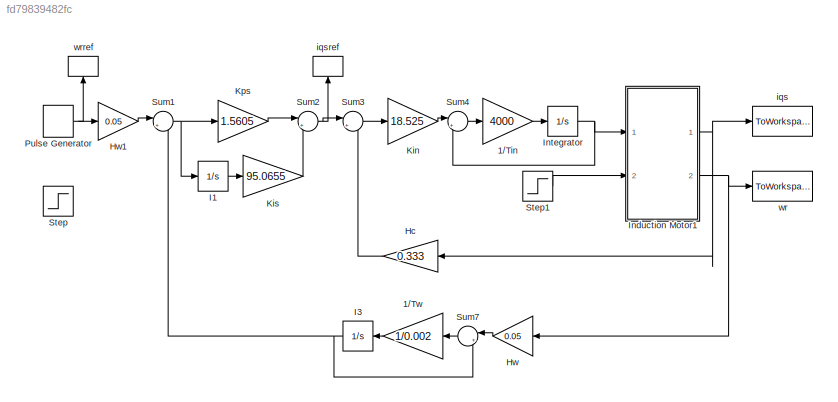
MODEL slx_fd79839482fc
KIND model
BLOCK [Gain] 1//Tin
  Gain = 4000
  OutDataTypeStr = Inherit: Inherit via internal rule
  ParamDataTypeStr = Inherit: Inherit via internal rule
  SaturateOnIntegerOverflow = off
BLOCK [Gain] 1//Tw
  Gain = 1/0.002
  OutDataTypeStr = Inherit: Inherit via internal rule
  ParamDataTypeStr = Inherit: Inherit via internal rule
  SaturateOnIntegerOverflow = off
BLOCK [Gain] Hc
  Gain = 0.333
  OutDataTypeStr = Inherit: Inherit via internal rule
  ParamDataTypeStr = Inherit: Inherit via internal rule
  SaturateOnIntegerOverflow = off
BLOCK [Gain] Hw
  Gain = 0.05
  OutDataTypeStr = Inherit: Inherit via internal rule
  ParamDataTypeStr = Inherit: Inherit via internal rule
  SaturateOnIntegerOverflow = off
BLOCK [Gain] Hw1
  Gain = 0.05
  OutDataTypeStr = Inherit: Inherit via internal rule
  ParamDataTypeStr = Inherit: Inherit via internal rule
  SaturateOnIntegerOverflow = off
BLOCK [Integrator] I1
  Ports = [1, 1]
BLOCK [Integrator] I3
  Ports = [1, 1]
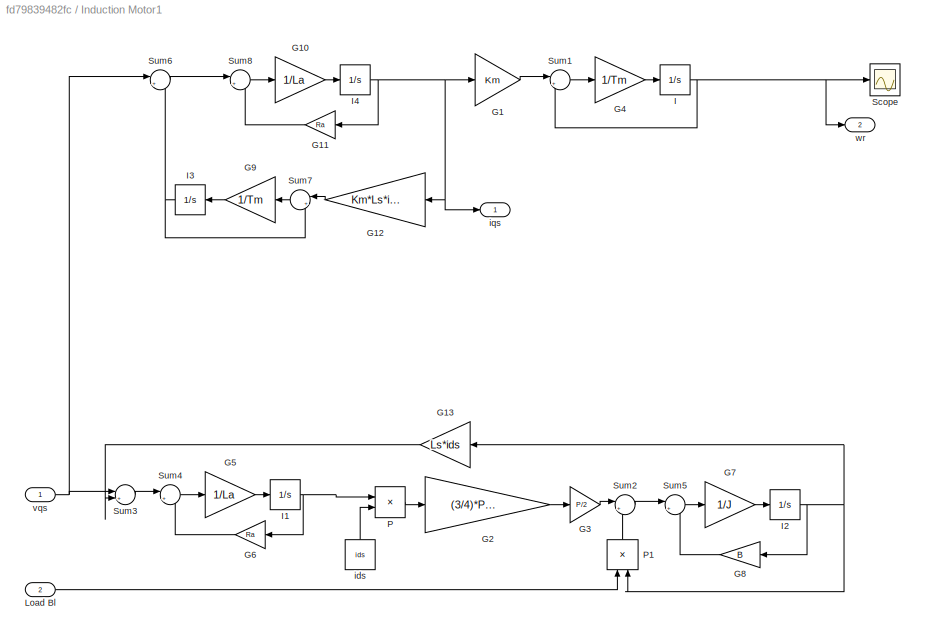
BLOCK [SubSystem] Induction Motor1
  FunctionWithSeparateData = off
  MaskHideContents = off
  MinAlgLoopOccurrences = off
  Opaque = off
  Ports = [2, 2]
  PropExecContextOutsideSubsystem = off
  RTWSystemCode = Auto
  RequestExecContextInheritance = off
BLOCK [Gain] Induction Motor1/G1
  Gain = Km
  OutDataTypeStr = Inherit: Inherit via internal rule
  ParamDataTypeStr = Inherit: Inherit via internal rule
  SaturateOnIntegerOverflow = off
BLOCK [Gain] Induction Motor1/G10
  Gain = 1/La
  OutDataTypeStr = Inherit: Inherit via internal rule
  ParamDataTypeStr = Inherit: Inherit via internal rule
  SaturateOnIntegerOverflow = off
BLOCK [Gain] Induction Motor1/G11
  Gain = Ra
  OutDataTypeStr = Inherit: Inherit via internal rule
  ParamDataTypeStr = Inherit: Inherit via internal rule
  SaturateOnIntegerOverflow = off
BLOCK [Gain] Induction Motor1/G12
  Gain = Km*Ls*ids
  OutDataTypeStr = Inherit: Inherit via internal rule
  ParamDataTypeStr = Inherit: Inherit via internal rule
  SaturateOnIntegerOverflow = off
BLOCK [Gain] Induction Motor1/G13
  Gain = Ls*ids
  OutDataTypeStr = Inherit: Inherit via internal rule
  ParamDataTypeStr = Inherit: Inherit via internal rule
  SaturateOnIntegerOverflow = off
BLOCK [Gain] Induction Motor1/G2
  Gain = (3/4)*P*((Lm*Lm)/Lr)
  OutDataTypeStr = Inherit: Inherit via internal rule
  ParamDataTypeStr = Inherit: Inherit via internal rule
  SaturateOnIntegerOverflow = off
BLOCK [Gain] Induction Motor1/G3
  Gain = P/2
  OutDataTypeStr = Inherit: Inherit via internal rule
  ParamDataTypeStr = Inherit: Inherit via internal rule
  SaturateOnIntegerOverflow = off
BLOCK [Gain] Induction Motor1/G4
  Gain = 1/Tm
  OutDataTypeStr = Inherit: Inherit via internal rule
  ParamDataTypeStr = Inherit: Inherit via internal rule
  SaturateOnIntegerOverflow = off
BLOCK [Gain] Induction Motor1/G5
  Gain = 1/La
  OutDataTypeStr = Inherit: Inherit via internal rule
  ParamDataTypeStr = Inherit: Inherit via internal rule
  SaturateOnIntegerOverflow = off
BLOCK [Gain] Induction Motor1/G6
  Gain = Ra
  OutDataTypeStr = Inherit: Inherit via internal rule
  ParamDataTypeStr = Inherit: Inherit via internal rule
  SaturateOnIntegerOverflow = off
BLOCK [Gain] Induction Motor1/G7
  Gain = 1/J
  OutDataTypeStr = Inherit: Inherit via internal rule
  ParamDataTypeStr = Inherit: Inherit via internal rule
  SaturateOnIntegerOverflow = off
BLOCK [Gain] Induction Motor1/G8
  Gain = B
  OutDataTypeStr = Inherit: Inherit via internal rule
  ParamDataTypeStr = Inherit: Inherit via internal rule
  SaturateOnIntegerOverflow = off
BLOCK [Gain] Induction Motor1/G9
  Gain = 1/Tm
  OutDataTypeStr = Inherit: Inherit via internal rule
  ParamDataTypeStr = Inherit: Inherit via internal rule
  SaturateOnIntegerOverflow = off
BLOCK [Integrator] Induction Motor1/I
  Ports = [1, 1]
BLOCK [Integrator] Induction Motor1/I1
  Ports = [1, 1]
BLOCK [Integrator] Induction Motor1/I2
  Ports = [1, 1]
BLOCK [Integrator] Induction Motor1/I3
  Ports = [1, 1]
BLOCK [Integrator] Induction Motor1/I4
  Ports = [1, 1]
BLOCK [Inport] Induction Motor1/Load Bl
  IconDisplay = Port number
  Port = 2
BLOCK [Product] Induction Motor1/P
  InputSameDT = off
  OutDataTypeStr = Inherit: Inherit via internal rule
  Ports = [2, 1]
  RndMeth = Floor
  SaturateOnIntegerOverflow = off
BLOCK [Product] Induction Motor1/P1
  InputSameDT = off
  OutDataTypeStr = Inherit: Inherit via internal rule
  Ports = [2, 1]
  RndMeth = Floor
  SaturateOnIntegerOverflow = off
BLOCK [Scope] Induction Motor1/Scope
  DataFormat = StructureWithTime
  Floating = off
  NumInputPorts = 1
  Ports = [1]
  SampleTime = 0
  ShowLegends = off
BLOCK [Sum] Induction Motor1/Sum1
  IconShape = round
  InputSameDT = off
  Inputs = |+-
  OutDataTypeStr = Inherit: Inherit via internal rule
  Ports = [2, 1]
  SaturateOnIntegerOverflow = off
BLOCK [Sum] Induction Motor1/Sum2
  IconShape = round
  InputSameDT = off
  Inputs = |+-
  OutDataTypeStr = Inherit: Inherit via internal rule
  Ports = [2, 1]
  SaturateOnIntegerOverflow = off
BLOCK [Sum] Induction Motor1/Sum3
  IconShape = round
  InputSameDT = off
  Inputs = |+-
  OutDataTypeStr = Inherit: Inherit via internal rule
  Ports = [2, 1]
  SaturateOnIntegerOverflow = off
BLOCK [Sum] Induction Motor1/Sum4
  IconShape = round
  InputSameDT = off
  Inputs = |+-
  OutDataTypeStr = Inherit: Inherit via internal rule
  Ports = [2, 1]
  SaturateOnIntegerOverflow = off
BLOCK [Sum] Induction Motor1/Sum5
  IconShape = round
  InputSameDT = off
  Inputs = |+-
  OutDataTypeStr = Inherit: Inherit via internal rule
  Ports = [2, 1]
  SaturateOnIntegerOverflow = off
BLOCK [Sum] Induction Motor1/Sum6
  IconShape = round
  InputSameDT = off
  Inputs = |+-
  OutDataTypeStr = Inherit: Inherit via internal rule
  Ports = [2, 1]
  SaturateOnIntegerOverflow = off
BLOCK [Sum] Induction Motor1/Sum7
  IconShape = round
  InputSameDT = off
  Inputs = |+-
  OutDataTypeStr = Inherit: Inherit via internal rule
  Ports = [2, 1]
  SaturateOnIntegerOverflow = off
BLOCK [Sum] Induction Motor1/Sum8
  IconShape = round
  InputSameDT = off
  Inputs = |+-
  OutDataTypeStr = Inherit: Inherit via internal rule
  Ports = [2, 1]
  SaturateOnIntegerOverflow = off
BLOCK [Constant] Induction Motor1/ids
  Value = ids
BLOCK [Outport] Induction Motor1/iqs
  IconDisplay = Port number
BLOCK [Inport] Induction Motor1/vqs
  IconDisplay = Port number
BLOCK [Outport] Induction Motor1/wr
  IconDisplay = Port number
  Port = 2
BLOCK [Integrator] Integrator
  Ports = [1, 1]
BLOCK [Gain] Kin
  Gain = 18.525
  OutDataTypeStr = Inherit: Inherit via internal rule
  ParamDataTypeStr = Inherit: Inherit via internal rule
  SaturateOnIntegerOverflow = off
BLOCK [Gain] Kis
  Gain = 95.0655
  OutDataTypeStr = Inherit: Inherit via internal rule
  ParamDataTypeStr = Inherit: Inherit via internal rule
  SaturateOnIntegerOverflow = off
BLOCK [Gain] Kps
  Gain = 1.5605
  OutDataTypeStr = Inherit: Inherit via internal rule
  ParamDataTypeStr = Inherit: Inherit via internal rule
  SaturateOnIntegerOverflow = off
BLOCK [DiscretePulseGenerator] Pulse Generator
  Period = 1
  Ports = [0, 1]
  PulseType = Time based
  PulseWidth = 50
BLOCK [Step] Step
  SampleTime = 0
  Time = 0
BLOCK [Step] Step1
  After = 0.025
  SampleTime = 0
  Time = 0.3
BLOCK [Sum] Sum1
  IconShape = round
  InputSameDT = off
  Inputs = |+-
  OutDataTypeStr = Inherit: Inherit via internal rule
  Ports = [2, 1]
  SaturateOnIntegerOverflow = off
BLOCK [Sum] Sum2
  IconShape = round
  InputSameDT = off
  Inputs = |++
  OutDataTypeStr = Inherit: Inherit via internal rule
  Ports = [2, 1]
  SaturateOnIntegerOverflow = off
BLOCK [Sum] Sum3
  IconShape = round
  InputSameDT = off
  Inputs = |+-
  OutDataTypeStr = Inherit: Inherit via internal rule
  Ports = [2, 1]
  SaturateOnIntegerOverflow = off
BLOCK [Sum] Sum4
  IconShape = round
  InputSameDT = off
  Inputs = |+-
  OutDataTypeStr = Inherit: Inherit via internal rule
  Ports = [2, 1]
  SaturateOnIntegerOverflow = off
BLOCK [Sum] Sum7
  IconShape = round
  InputSameDT = off
  Inputs = |+-
  OutDataTypeStr = Inherit: Inherit via internal rule
  Ports = [2, 1]
  SaturateOnIntegerOverflow = off
BLOCK [ToWorkspace] iqs
  MaxDataPoints = inf
  Ports = [1]
  SampleTime = -1
  SaveFormat = Timeseries
  VariableName = iqs
BLOCK [ToWorkspace] iqsref
  MaxDataPoints = inf
  Ports = [1]
  SampleTime = -1
  SaveFormat = Timeseries
  VariableName = iqsref
BLOCK [ToWorkspace] wr
  MaxDataPoints = inf
  Ports = [1]
  SampleTime = -1
  SaveFormat = Timeseries
  VariableName = wr
BLOCK [ToWorkspace] wrref
  MaxDataPoints = inf
  Ports = [1]
  SampleTime = -1
  SaveFormat = Timeseries
  VariableName = wrref
LINE 1//Tin:1 -> Integrator:1
LINE 1//Tw:1 -> I3:1
LINE Hc:1 -> Sum3:2
LINE Hw1:1 -> Sum1:1
LINE Hw:1 -> Sum7:1
LINE I1:1 -> Kis:1
NET I3:1 -> Sum1:2, Sum7:2
LINE Induction Motor1/G10:1 -> Induction Motor1/I4:1
LINE Induction Motor1/G11:1 -> Induction Motor1/Sum8:2
LINE Induction Motor1/G12:1 -> Induction Motor1/Sum7:1
LINE Induction Motor1/G13:1 -> Induction Motor1/Sum3:2
LINE Induction Motor1/G1:1 -> Induction Motor1/Sum1:1
LINE Induction Motor1/G2:1 -> Induction Motor1/G3:1
LINE Induction Motor1/G3:1 -> Induction Motor1/Sum2:1
LINE Induction Motor1/G4:1 -> Induction Motor1/I:1
LINE Induction Motor1/G5:1 -> Induction Motor1/I1:1
LINE Induction Motor1/G6:1 -> Induction Motor1/Sum4:2
LINE Induction Motor1/G7:1 -> Induction Motor1/I2:1
LINE Induction Motor1/G8:1 -> Induction Motor1/Sum5:2
LINE Induction Motor1/G9:1 -> Induction Motor1/I3:1
NET Induction Motor1/I1:1 -> Induction Motor1/G6:1, Induction Motor1/P:1
NET Induction Motor1/I2:1 -> Induction Motor1/G13:1, Induction Motor1/G8:1, Induction Motor1/P1:2
NET Induction Motor1/I3:1 -> Induction Motor1/Sum6:2, Induction Motor1/Sum7:2
NET Induction Motor1/I4:1 -> Induction Motor1/G11:1, Induction Motor1/G12:1, Induction Motor1/G1:1, Induction Motor1/iqs:1
NET Induction Motor1/I:1 -> Induction Motor1/Scope:1, Induction Motor1/Sum1:2, Induction Motor1/wr:1
LINE Induction Motor1/Load Bl:1 -> Induction Motor1/P1:1
LINE Induction Motor1/P1:1 -> Induction Motor1/Sum2:2
LINE Induction Motor1/P:1 -> Induction Motor1/G2:1
LINE Induction Motor1/Sum1:1 -> Induction Motor1/G4:1
LINE Induction Motor1/Sum2:1 -> Induction Motor1/Sum5:1
LINE Induction Motor1/Sum3:1 -> Induction Motor1/Sum4:1
LINE Induction Motor1/Sum4:1 -> Induction Motor1/G5:1
LINE Induction Motor1/Sum5:1 -> Induction Motor1/G7:1
LINE Induction Motor1/Sum6:1 -> Induction Motor1/Sum8:1
LINE Induction Motor1/Sum7:1 -> Induction Motor1/G9:1
LINE Induction Motor1/Sum8:1 -> Induction Motor1/G10:1
LINE Induction Motor1/ids:1 -> Induction Motor1/P:2
NET Induction Motor1/vqs:1 -> Induction Motor1/Sum3:1, Induction Motor1/Sum6:1
NET Induction Motor1:1 -> Hc:1, iqs:1
NET Induction Motor1:2 -> Hw:1, wr:1
NET Integrator:1 -> Induction Motor1:1, Sum4:2
LINE Kin:1 -> Sum4:1
LINE Kis:1 -> Sum2:2
LINE Kps:1 -> Sum2:1
NET Pulse Generator:1 -> Hw1:1, wrref:1
LINE Step1:1 -> Induction Motor1:2
NET Sum1:1 -> I1:1, Kps:1
NET Sum2:1 -> Sum3:1, iqsref:1
LINE Sum3:1 -> Kin:1
LINE Sum4:1 -> 1//Tin:1
LINE Sum7:1 -> 1//Tw:1
note: NET lines group one-source signal fan-out (src -> all destinations, sorted); 1:1 wires keep LINE
